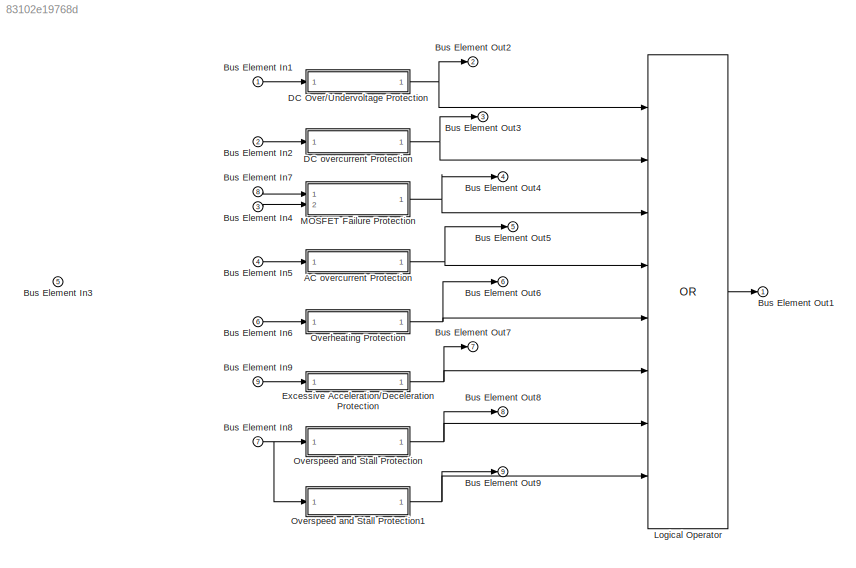
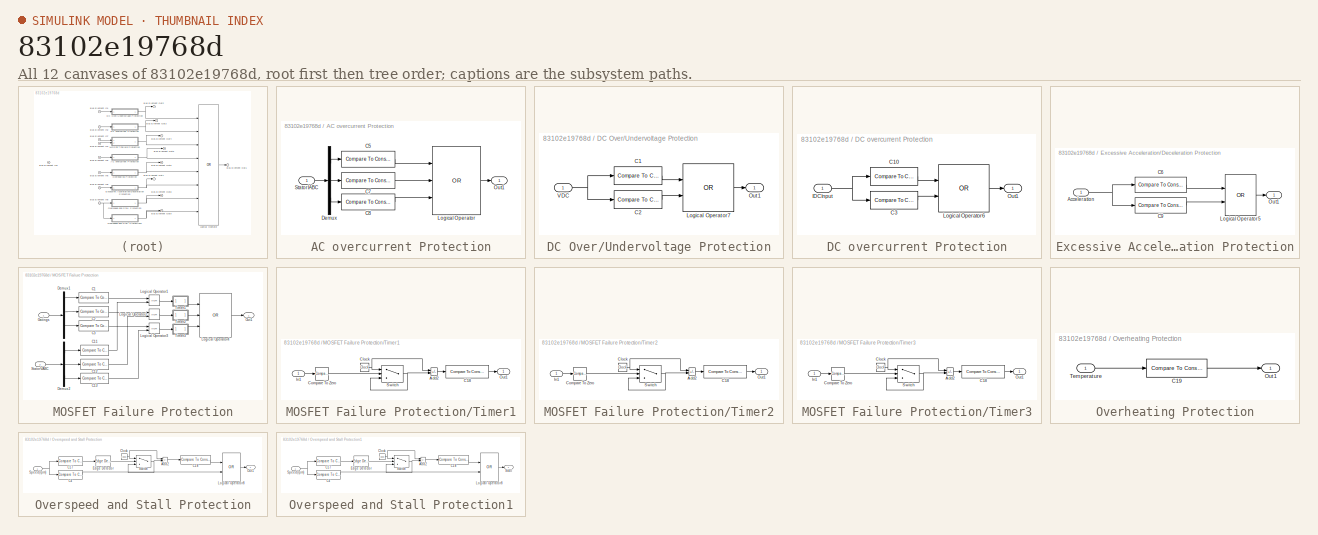
[diagram: thumbnail index - all 12 canvases of the model, root first then tree order]
MODEL slx_83102e19768d
KIND model
CONFIG AbsTol = auto
CONFIG EnableMultiTasking = off
CONFIG FixedStep = auto
CONFIG MaxStep = auto
CONFIG MinStep = auto
CONFIG RelTol = 1e-3
CONFIG SampleTimeConstraint = Unconstrained
CONFIG Solver = VariableStepAuto
CONFIG SolverName = VariableStepAuto
CONFIG StartTime = 0.0
CONFIG StopTime = 10.0
BLOCK [SubSystem] AC overcurrent Protection
  Ports = [1, 1]
  RequestExecContextInheritance = off
BLOCK [Reference] AC overcurrent Protection/C5  REF=simulink/Logic and Bit
Operations/Compare
To Constant
  NameLocation = top
  Ports = [1, 1]
  SourceBlock = simulink/Logic and Bit\nOperations/Compare\nTo Constant
  SourceProductBaseCode = SL
  SourceType = Compare To Constant
BLOCK [Reference] AC overcurrent Protection/C7  REF=simulink/Logic and Bit
Operations/Compare
To Constant
  Ports = [1, 1]
  SourceBlock = simulink/Logic and Bit\nOperations/Compare\nTo Constant
  SourceProductBaseCode = SL
  SourceType = Compare To Constant
BLOCK [Reference] AC overcurrent Protection/C8  REF=simulink/Logic and Bit
Operations/Compare
To Constant
  Ports = [1, 1]
  SourceBlock = simulink/Logic and Bit\nOperations/Compare\nTo Constant
  SourceProductBaseCode = SL
  SourceType = Compare To Constant
BLOCK [Demux] AC overcurrent Protection/Demux
  Outputs = 3
  Ports = [1, 3]
BLOCK [Logic] AC overcurrent Protection/Logical Operator
  AllPortsSameDT = off
  Inputs = 3
  Operator = OR
  OutDataTypeStr = boolean
  Ports = [3, 1]
BLOCK [Outport] AC overcurrent Protection/Out1
BLOCK [Inport] AC overcurrent Protection/StatorIABC
BLOCK [Inport] Bus Element In1
BLOCK [Inport] Bus Element In2
  Port = 2
BLOCK [Inport] Bus Element In3
  Port = 5
BLOCK [Inport] Bus Element In4
  Port = 3
BLOCK [Inport] Bus Element In5
  Port = 4
BLOCK [Inport] Bus Element In6
  Port = 6
BLOCK [Inport] Bus Element In7
  Port = 8
BLOCK [Inport] Bus Element In8
  Port = 7
BLOCK [Inport] Bus Element In9
  Port = 9
BLOCK [Outport] Bus Element Out1
BLOCK [Outport] Bus Element Out2
  Port = 2
BLOCK [Outport] Bus Element Out3
  Port = 3
BLOCK [Outport] Bus Element Out4
  Port = 4
BLOCK [Outport] Bus Element Out5
  Port = 5
BLOCK [Outport] Bus Element Out6
  Port = 6
BLOCK [Outport] Bus Element Out7
  Port = 7
BLOCK [Outport] Bus Element Out8
  Port = 8
BLOCK [Outport] Bus Element Out9
  Port = 9
BLOCK [SubSystem] DC Over//Undervoltage Protection
  Ports = [1, 1]
  RequestExecContextInheritance = off
BLOCK [Reference] DC Over//Undervoltage Protection/C1  REF=simulink/Logic and Bit
Operations/Compare
To Constant
  NameLocation = top
  Ports = [1, 1]
  SourceBlock = simulink/Logic and Bit\nOperations/Compare\nTo Constant
  SourceProductBaseCode = SL
  SourceType = Compare To Constant
BLOCK [Reference] DC Over//Undervoltage Protection/C2  REF=simulink/Logic and Bit
Operations/Compare
To Constant
  Ports = [1, 1]
  SourceBlock = simulink/Logic and Bit\nOperations/Compare\nTo Constant
  SourceProductBaseCode = SL
  SourceType = Compare To Constant
BLOCK [Logic] DC Over//Undervoltage Protection/Logical Operator7
  AllPortsSameDT = off
  Operator = OR
  OutDataTypeStr = boolean
  Ports = [2, 1]
BLOCK [Outport] DC Over//Undervoltage Protection/Out1
BLOCK [Inport] DC Over//Undervoltage Protection/VDC
BLOCK [SubSystem] DC overcurrent Protection
  Ports = [1, 1]
  RequestExecContextInheritance = off
BLOCK [Reference] DC overcurrent Protection/C10  REF=simulink/Logic and Bit
Operations/Compare
To Constant
  NameLocation = top
  Ports = [1, 1]
  SourceBlock = simulink/Logic and Bit\nOperations/Compare\nTo Constant
  SourceProductBaseCode = SL
  SourceType = Compare To Constant
BLOCK [Reference] DC overcurrent Protection/C3  REF=simulink/Logic and Bit
Operations/Compare
To Constant
  Ports = [1, 1]
  SourceBlock = simulink/Logic and Bit\nOperations/Compare\nTo Constant
  SourceProductBaseCode = SL
  SourceType = Compare To Constant
BLOCK [Inport] DC overcurrent Protection/IDCInput
BLOCK [Logic] DC overcurrent Protection/Logical Operator6
  AllPortsSameDT = off
  Operator = OR
  OutDataTypeStr = boolean
  Ports = [2, 1]
BLOCK [Outport] DC overcurrent Protection/Out1
BLOCK [SubSystem] Excessive Acceleration//Deceleration Protection
  Ports = [1, 1]
  RequestExecContextInheritance = off
BLOCK [Inport] Excessive Acceleration//Deceleration Protection/Acceleration
BLOCK [Reference] Excessive Acceleration//Deceleration Protection/C6  REF=simulink/Logic and Bit
Operations/Compare
To Constant
  NameLocation = top
  Ports = [1, 1]
  SourceBlock = simulink/Logic and Bit\nOperations/Compare\nTo Constant
  SourceProductBaseCode = SL
  SourceType = Compare To Constant
BLOCK [Reference] Excessive Acceleration//Deceleration Protection/C9  REF=simulink/Logic and Bit
Operations/Compare
To Constant
  Ports = [1, 1]
  SourceBlock = simulink/Logic and Bit\nOperations/Compare\nTo Constant
  SourceProductBaseCode = SL
  SourceType = Compare To Constant
BLOCK [Logic] Excessive Acceleration//Deceleration Protection/Logical Operator5
  AllPortsSameDT = off
  Operator = OR
  OutDataTypeStr = boolean
  Ports = [2, 1]
BLOCK [Outport] Excessive Acceleration//Deceleration Protection/Out1
BLOCK [Logic] Logical Operator
  AllPortsSameDT = off
  Inputs = 8
  Operator = OR
  OutDataTypeStr = boolean
  Ports = [8, 1]
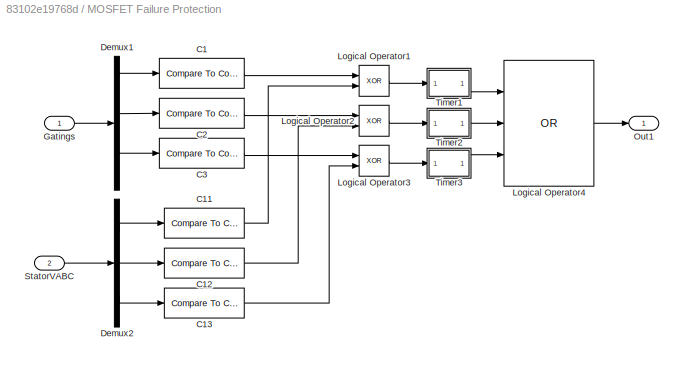
BLOCK [SubSystem] MOSFET Failure Protection
  Ports = [2, 1]
  RequestExecContextInheritance = off
BLOCK [Reference] MOSFET Failure Protection/C1  REF=simulink/Logic and Bit
Operations/Compare
To Constant
  Ports = [1, 1]
  SourceBlock = simulink/Logic and Bit\nOperations/Compare\nTo Constant
  SourceProductBaseCode = SL
  SourceType = Compare To Constant
BLOCK [Reference] MOSFET Failure Protection/C11  REF=simulink/Logic and Bit
Operations/Compare
To Constant
  Ports = [1, 1]
  SourceBlock = simulink/Logic and Bit\nOperations/Compare\nTo Constant
  SourceProductBaseCode = SL
  SourceType = Compare To Constant
BLOCK [Reference] MOSFET Failure Protection/C12  REF=simulink/Logic and Bit
Operations/Compare
To Constant
  Ports = [1, 1]
  SourceBlock = simulink/Logic and Bit\nOperations/Compare\nTo Constant
  SourceProductBaseCode = SL
  SourceType = Compare To Constant
BLOCK [Reference] MOSFET Failure Protection/C13  REF=simulink/Logic and Bit
Operations/Compare
To Constant
  Ports = [1, 1]
  SourceBlock = simulink/Logic and Bit\nOperations/Compare\nTo Constant
  SourceProductBaseCode = SL
  SourceType = Compare To Constant
BLOCK [Reference] MOSFET Failure Protection/C2  REF=simulink/Logic and Bit
Operations/Compare
To Constant
  Ports = [1, 1]
  SourceBlock = simulink/Logic and Bit\nOperations/Compare\nTo Constant
  SourceProductBaseCode = SL
  SourceType = Compare To Constant
BLOCK [Reference] MOSFET Failure Protection/C3  REF=simulink/Logic and Bit
Operations/Compare
To Constant
  Ports = [1, 1]
  SourceBlock = simulink/Logic and Bit\nOperations/Compare\nTo Constant
  SourceProductBaseCode = SL
  SourceType = Compare To Constant
BLOCK [Demux] MOSFET Failure Protection/Demux1
  Outputs = 6
  Ports = [1, 6]
BLOCK [Demux] MOSFET Failure Protection/Demux2
  Outputs = 3
  Ports = [1, 3]
BLOCK [Inport] MOSFET Failure Protection/Gatings
BLOCK [Logic] MOSFET Failure Protection/Logical Operator1
  AllPortsSameDT = off
  Operator = XOR
  OutDataTypeStr = boolean
  Ports = [2, 1]
BLOCK [Logic] MOSFET Failure Protection/Logical Operator2
  AllPortsSameDT = off
  Operator = XOR
  OutDataTypeStr = boolean
  Ports = [2, 1]
BLOCK [Logic] MOSFET Failure Protection/Logical Operator3
  AllPortsSameDT = off
  Operator = XOR
  OutDataTypeStr = boolean
  Ports = [2, 1]
BLOCK [Logic] MOSFET Failure Protection/Logical Operator4
  AllPortsSameDT = off
  Inputs = 3
  Operator = OR
  OutDataTypeStr = boolean
  Ports = [3, 1]
BLOCK [Outport] MOSFET Failure Protection/Out1
BLOCK [Inport] MOSFET Failure Protection/StatorVABC
  Port = 2
BLOCK [SubSystem] MOSFET Failure Protection/Timer1
  Ports = [1, 1]
  RequestExecContextInheritance = off
BLOCK [Sum] MOSFET Failure Protection/Timer1/Add2
  IconShape = rectangular
  Inputs = +-
  Ports = [2, 1]
BLOCK [Reference] MOSFET Failure Protection/Timer1/C18  REF=simulink/Logic and Bit
Operations/Compare
To Constant
  NameLocation = top
  Ports = [1, 1]
  SourceBlock = simulink/Logic and Bit\nOperations/Compare\nTo Constant
  SourceProductBaseCode = SL
  SourceType = Compare To Constant
BLOCK [Clock] MOSFET Failure Protection/Timer1/Clock
  Decimation = 1000000
  NameLocation = top
BLOCK [Reference] MOSFET Failure Protection/Timer1/Compare To Zero  REF=simulink/Logic and Bit
Operations/Compare
To Zero
  Ports = [1, 1]
  SourceBlock = simulink/Logic and Bit\nOperations/Compare\nTo Zero
  SourceProductBaseCode = SL
  SourceType = Compare To Zero
BLOCK [Inport] MOSFET Failure Protection/Timer1/In1
BLOCK [Outport] MOSFET Failure Protection/Timer1/Out1
BLOCK [Switch] MOSFET Failure Protection/Timer1/Switch
  InputSameDT = off
  SaturateOnIntegerOverflow = off
  Threshold = 1
BLOCK [SubSystem] MOSFET Failure Protection/Timer2
  Ports = [1, 1]
  RequestExecContextInheritance = off
BLOCK [Sum] MOSFET Failure Protection/Timer2/Add2
  IconShape = rectangular
  Inputs = +-
  Ports = [2, 1]
BLOCK [Reference] MOSFET Failure Protection/Timer2/C18  REF=simulink/Logic and Bit
Operations/Compare
To Constant
  NameLocation = top
  Ports = [1, 1]
  SourceBlock = simulink/Logic and Bit\nOperations/Compare\nTo Constant
  SourceProductBaseCode = SL
  SourceType = Compare To Constant
BLOCK [Clock] MOSFET Failure Protection/Timer2/Clock
  Decimation = 1000000
  NameLocation = top
BLOCK [Reference] MOSFET Failure Protection/Timer2/Compare To Zero  REF=simulink/Logic and Bit
Operations/Compare
To Zero
  Ports = [1, 1]
  SourceBlock = simulink/Logic and Bit\nOperations/Compare\nTo Zero
  SourceProductBaseCode = SL
  SourceType = Compare To Zero
BLOCK [Inport] MOSFET Failure Protection/Timer2/In1
BLOCK [Outport] MOSFET Failure Protection/Timer2/Out1
BLOCK [Switch] MOSFET Failure Protection/Timer2/Switch
  InputSameDT = off
  SaturateOnIntegerOverflow = off
  Threshold = 1
BLOCK [SubSystem] MOSFET Failure Protection/Timer3
  Ports = [1, 1]
  RequestExecContextInheritance = off
BLOCK [Sum] MOSFET Failure Protection/Timer3/Add2
  IconShape = rectangular
  Inputs = +-
  Ports = [2, 1]
BLOCK [Reference] MOSFET Failure Protection/Timer3/C18  REF=simulink/Logic and Bit
Operations/Compare
To Constant
  NameLocation = top
  Ports = [1, 1]
  SourceBlock = simulink/Logic and Bit\nOperations/Compare\nTo Constant
  SourceProductBaseCode = SL
  SourceType = Compare To Constant
BLOCK [Clock] MOSFET Failure Protection/Timer3/Clock
  Decimation = 1000000
  NameLocation = top
BLOCK [Reference] MOSFET Failure Protection/Timer3/Compare To Zero  REF=simulink/Logic and Bit
Operations/Compare
To Zero
  Ports = [1, 1]
  SourceBlock = simulink/Logic and Bit\nOperations/Compare\nTo Zero
  SourceProductBaseCode = SL
  SourceType = Compare To Zero
BLOCK [Inport] MOSFET Failure Protection/Timer3/In1
BLOCK [Outport] MOSFET Failure Protection/Timer3/Out1
BLOCK [Switch] MOSFET Failure Protection/Timer3/Switch
  InputSameDT = off
  SaturateOnIntegerOverflow = off
  Threshold = 1
BLOCK [SubSystem] Overheating Protection
  Ports = [1, 1]
  RequestExecContextInheritance = off
BLOCK [Reference] Overheating Protection/C19  REF=simulink/Logic and Bit
Operations/Compare
To Constant
  NameLocation = top
  Ports = [1, 1]
  SourceBlock = simulink/Logic and Bit\nOperations/Compare\nTo Constant
  SourceProductBaseCode = SL
  SourceType = Compare To Constant
BLOCK [Outport] Overheating Protection/Out1
BLOCK [Inport] Overheating Protection/Temperature
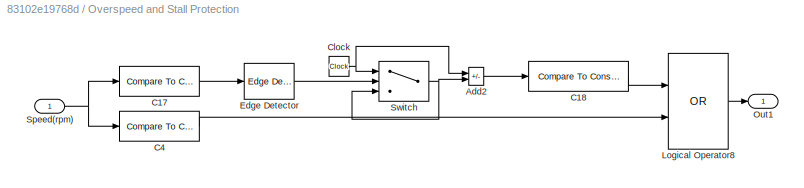
BLOCK [SubSystem] Overspeed and Stall Protection
  Ports = [1, 1]
  RequestExecContextInheritance = off
BLOCK [Sum] Overspeed and Stall Protection/Add2
  IconShape = rectangular
  Inputs = +-
  Ports = [2, 1]
BLOCK [Reference] Overspeed and Stall Protection/C17  REF=simulink/Logic and Bit
Operations/Compare
To Constant
  NameLocation = top
  Ports = [1, 1]
  SourceBlock = simulink/Logic and Bit\nOperations/Compare\nTo Constant
  SourceProductBaseCode = SL
  SourceType = Compare To Constant
BLOCK [Reference] Overspeed and Stall Protection/C18  REF=simulink/Logic and Bit
Operations/Compare
To Constant
  NameLocation = top
  Ports = [1, 1]
  SourceBlock = simulink/Logic and Bit\nOperations/Compare\nTo Constant
  SourceProductBaseCode = SL
  SourceType = Compare To Constant
BLOCK [Reference] Overspeed and Stall Protection/C4  REF=simulink/Logic and Bit
Operations/Compare
To Constant
  Ports = [1, 1]
  SourceBlock = simulink/Logic and Bit\nOperations/Compare\nTo Constant
  SourceProductBaseCode = SL
  SourceType = Compare To Constant
BLOCK [Clock] Overspeed and Stall Protection/Clock
  Decimation = 1000000
  NameLocation = top
BLOCK [Reference] Overspeed and Stall Protection/Edge Detector  REF=powerlib_meascontrol/Logic/Edge Detector
  Ports = [1, 1]
  SourceBlock = powerlib_meascontrol/Logic/Edge Detector
  SourceProductBaseCode = PS
  SourceType = Edge Detector
BLOCK [Logic] Overspeed and Stall Protection/Logical Operator8
  AllPortsSameDT = off
  Operator = OR
  OutDataTypeStr = boolean
  Ports = [2, 1]
BLOCK [Outport] Overspeed and Stall Protection/Out1
BLOCK [Inport] Overspeed and Stall Protection/Speed(rpm)
BLOCK [Switch] Overspeed and Stall Protection/Switch
  Criteria = u2 > Threshold
  InputSameDT = off
  SaturateOnIntegerOverflow = off
BLOCK [SubSystem] Overspeed and Stall Protection1
  Ports = [1, 1]
  RequestExecContextInheritance = off
BLOCK [Sum] Overspeed and Stall Protection1/Add2
  IconShape = rectangular
  Inputs = +-
  Ports = [2, 1]
BLOCK [Reference] Overspeed and Stall Protection1/C17  REF=simulink/Logic and Bit
Operations/Compare
To Constant
  NameLocation = top
  Ports = [1, 1]
  SourceBlock = simulink/Logic and Bit\nOperations/Compare\nTo Constant
  SourceProductBaseCode = SL
  SourceType = Compare To Constant
BLOCK [Reference] Overspeed and Stall Protection1/C18  REF=simulink/Logic and Bit
Operations/Compare
To Constant
  NameLocation = top
  Ports = [1, 1]
  SourceBlock = simulink/Logic and Bit\nOperations/Compare\nTo Constant
  SourceProductBaseCode = SL
  SourceType = Compare To Constant
BLOCK [Reference] Overspeed and Stall Protection1/C4  REF=simulink/Logic and Bit
Operations/Compare
To Constant
  Ports = [1, 1]
  SourceBlock = simulink/Logic and Bit\nOperations/Compare\nTo Constant
  SourceProductBaseCode = SL
  SourceType = Compare To Constant
BLOCK [Clock] Overspeed and Stall Protection1/Clock
  Decimation = 1000000
  NameLocation = top
BLOCK [Reference] Overspeed and Stall Protection1/Edge Detector  REF=powerlib_meascontrol/Logic/Edge Detector
  Ports = [1, 1]
  SourceBlock = powerlib_meascontrol/Logic/Edge Detector
  SourceProductBaseCode = PS
  SourceType = Edge Detector
BLOCK [Logic] Overspeed and Stall Protection1/Logical Operator8
  AllPortsSameDT = off
  Operator = OR
  OutDataTypeStr = boolean
  Ports = [2, 1]
BLOCK [Inport] Overspeed and Stall Protection1/Speed(rpm)
BLOCK [Outport] Overspeed and Stall Protection1/Stall
BLOCK [Switch] Overspeed and Stall Protection1/Switch
  Criteria = u2 > Threshold
  InputSameDT = off
  SaturateOnIntegerOverflow = off
LINE AC overcurrent Protection/C5:1 -> AC overcurrent Protection/Logical Operator:1
LINE AC overcurrent Protection/C7:1 -> AC overcurrent Protection/Logical Operator:2
LINE AC overcurrent Protection/C8:1 -> AC overcurrent Protection/Logical Operator:3
LINE AC overcurrent Protection/Demux:1 -> AC overcurrent Protection/C5:1
LINE AC overcurrent Protection/Demux:2 -> AC overcurrent Protection/C7:1
LINE AC overcurrent Protection/Demux:3 -> AC overcurrent Protection/C8:1
LINE AC overcurrent Protection/Logical Operator:1 -> AC overcurrent Protection/Out1:1
LINE AC overcurrent Protection/StatorIABC:1 -> AC overcurrent Protection/Demux:1
NET AC overcurrent Protection:1 -> Bus Element Out5:1, Logical Operator:4
LINE Bus Element In1:1 -> DC Over//Undervoltage Protection:1
LINE Bus Element In2:1 -> DC overcurrent Protection:1
LINE Bus Element In4:1 -> MOSFET Failure Protection:2
LINE Bus Element In5:1 -> AC overcurrent Protection:1
LINE Bus Element In6:1 -> Overheating Protection:1
LINE Bus Element In7:1 -> MOSFET Failure Protection:1
NET Bus Element In8:1 -> Overspeed and Stall Protection1:1, Overspeed and Stall Protection:1
LINE Bus Element In9:1 -> Excessive Acceleration//Deceleration Protection:1
LINE DC Over//Undervoltage Protection/C1:1 -> DC Over//Undervoltage Protection/Logical Operator7:1
LINE DC Over//Undervoltage Protection/C2:1 -> DC Over//Undervoltage Protection/Logical Operator7:2
LINE DC Over//Undervoltage Protection/Logical Operator7:1 -> DC Over//Undervoltage Protection/Out1:1
NET DC Over//Undervoltage Protection/VDC:1 -> DC Over//Undervoltage Protection/C1:1, DC Over//Undervoltage Protection/C2:1
NET DC Over//Undervoltage Protection:1 -> Bus Element Out2:1, Logical Operator:1
LINE DC overcurrent Protection/C10:1 -> DC overcurrent Protection/Logical Operator6:1
LINE DC overcurrent Protection/C3:1 -> DC overcurrent Protection/Logical Operator6:2
NET DC overcurrent Protection/IDCInput:1 -> DC overcurrent Protection/C10:1, DC overcurrent Protection/C3:1
LINE DC overcurrent Protection/Logical Operator6:1 -> DC overcurrent Protection/Out1:1
NET DC overcurrent Protection:1 -> Bus Element Out3:1, Logical Operator:2
NET Excessive Acceleration//Deceleration Protection/Acceleration:1 -> Excessive Acceleration//Deceleration Protection/C6:1, Excessive Acceleration//Deceleration Protection/C9:1
LINE Excessive Acceleration//Deceleration Protection/C6:1 -> Excessive Acceleration//Deceleration Protection/Logical Operator5:1
LINE Excessive Acceleration//Deceleration Protection/C9:1 -> Excessive Acceleration//Deceleration Protection/Logical Operator5:2
LINE Excessive Acceleration//Deceleration Protection/Logical Operator5:1 -> Excessive Acceleration//Deceleration Protection/Out1:1
NET Excessive Acceleration//Deceleration Protection:1 -> Bus Element Out7:1, Logical Operator:6
LINE Logical Operator:1 -> Bus Element Out1:1
LINE MOSFET Failure Protection/C11:1 -> MOSFET Failure Protection/Logical Operator1:2
LINE MOSFET Failure Protection/C12:1 -> MOSFET Failure Protection/Logical Operator2:2
LINE MOSFET Failure Protection/C13:1 -> MOSFET Failure Protection/Logical Operator3:2
LINE MOSFET Failure Protection/C1:1 -> MOSFET Failure Protection/Logical Operator1:1
LINE MOSFET Failure Protection/C2:1 -> MOSFET Failure Protection/Logical Operator2:1
LINE MOSFET Failure Protection/C3:1 -> MOSFET Failure Protection/Logical Operator3:1
LINE MOSFET Failure Protection/Demux1:1 -> MOSFET Failure Protection/C1:1
LINE MOSFET Failure Protection/Demux1:3 -> MOSFET Failure Protection/C2:1
LINE MOSFET Failure Protection/Demux1:5 -> MOSFET Failure Protection/C3:1
LINE MOSFET Failure Protection/Demux2:1 -> MOSFET Failure Protection/C11:1
LINE MOSFET Failure Protection/Demux2:2 -> MOSFET Failure Protection/C12:1
LINE MOSFET Failure Protection/Demux2:3 -> MOSFET Failure Protection/C13:1
LINE MOSFET Failure Protection/Gatings:1 -> MOSFET Failure Protection/Demux1:1
LINE MOSFET Failure Protection/Logical Operator1:1 -> MOSFET Failure Protection/Timer1:1
LINE MOSFET Failure Protection/Logical Operator2:1 -> MOSFET Failure Protection/Timer2:1
LINE MOSFET Failure Protection/Logical Operator3:1 -> MOSFET Failure Protection/Timer3:1
LINE MOSFET Failure Protection/Logical Operator4:1 -> MOSFET Failure Protection/Out1:1
LINE MOSFET Failure Protection/StatorVABC:1 -> MOSFET Failure Protection/Demux2:1
LINE MOSFET Failure Protection/Timer1/Add2:1 -> MOSFET Failure Protection/Timer1/C18:1
LINE MOSFET Failure Protection/Timer1/C18:1 -> MOSFET Failure Protection/Timer1/Out1:1
NET MOSFET Failure Protection/Timer1/Clock:1 -> MOSFET Failure Protection/Timer1/Add2:1, MOSFET Failure Protection/Timer1/Switch:1
LINE MOSFET Failure Protection/Timer1/Compare To Zero:1 -> MOSFET Failure Protection/Timer1/Switch:2
LINE MOSFET Failure Protection/Timer1/In1:1 -> MOSFET Failure Protection/Timer1/Compare To Zero:1
NET MOSFET Failure Protection/Timer1/Switch:1 -> MOSFET Failure Protection/Timer1/Add2:2, MOSFET Failure Protection/Timer1/Switch:3
LINE MOSFET Failure Protection/Timer1:1 -> MOSFET Failure Protection/Logical Operator4:1
LINE MOSFET Failure Protection/Timer2/Add2:1 -> MOSFET Failure Protection/Timer2/C18:1
LINE MOSFET Failure Protection/Timer2/C18:1 -> MOSFET Failure Protection/Timer2/Out1:1
NET MOSFET Failure Protection/Timer2/Clock:1 -> MOSFET Failure Protection/Timer2/Add2:1, MOSFET Failure Protection/Timer2/Switch:1
LINE MOSFET Failure Protection/Timer2/Compare To Zero:1 -> MOSFET Failure Protection/Timer2/Switch:2
LINE MOSFET Failure Protection/Timer2/In1:1 -> MOSFET Failure Protection/Timer2/Compare To Zero:1
NET MOSFET Failure Protection/Timer2/Switch:1 -> MOSFET Failure Protection/Timer2/Add2:2, MOSFET Failure Protection/Timer2/Switch:3
LINE MOSFET Failure Protection/Timer2:1 -> MOSFET Failure Protection/Logical Operator4:2
LINE MOSFET Failure Protection/Timer3/Add2:1 -> MOSFET Failure Protection/Timer3/C18:1
LINE MOSFET Failure Protection/Timer3/C18:1 -> MOSFET Failure Protection/Timer3/Out1:1
NET MOSFET Failure Protection/Timer3/Clock:1 -> MOSFET Failure Protection/Timer3/Add2:1, MOSFET Failure Protection/Timer3/Switch:1
LINE MOSFET Failure Protection/Timer3/Compare To Zero:1 -> MOSFET Failure Protection/Timer3/Switch:2
LINE MOSFET Failure Protection/Timer3/In1:1 -> MOSFET Failure Protection/Timer3/Compare To Zero:1
NET MOSFET Failure Protection/Timer3/Switch:1 -> MOSFET Failure Protection/Timer3/Add2:2, MOSFET Failure Protection/Timer3/Switch:3
LINE MOSFET Failure Protection/Timer3:1 -> MOSFET Failure Protection/Logical Operator4:3
NET MOSFET Failure Protection:1 -> Bus Element Out4:1, Logical Operator:3
LINE Overheating Protection/C19:1 -> Overheating Protection/Out1:1
LINE Overheating Protection/Temperature:1 -> Overheating Protection/C19:1
NET Overheating Protection:1 -> Bus Element Out6:1, Logical Operator:5
LINE Overspeed and Stall Protection/Add2:1 -> Overspeed and Stall Protection/C18:1
LINE Overspeed and Stall Protection/C17:1 -> Overspeed and Stall Protection/Edge Detector:1
LINE Overspeed and Stall Protection/C18:1 -> Overspeed and Stall Protection/Logical Operator8:1
LINE Overspeed and Stall Protection/C4:1 -> Overspeed and Stall Protection/Logical Operator8:2
NET Overspeed and Stall Protection/Clock:1 -> Overspeed and Stall Protection/Add2:1, Overspeed and Stall Protection/Switch:1
LINE Overspeed and Stall Protection/Edge Detector:1 -> Overspeed and Stall Protection/Switch:2
LINE Overspeed and Stall Protection/Logical Operator8:1 -> Overspeed and Stall Protection/Out1:1
NET Overspeed and Stall Protection/Speed(rpm):1 -> Overspeed and Stall Protection/C17:1, Overspeed and Stall Protection/C4:1
NET Overspeed and Stall Protection/Switch:1 -> Overspeed and Stall Protection/Add2:2, Overspeed and Stall Protection/Switch:3
LINE Overspeed and Stall Protection1/Add2:1 -> Overspeed and Stall Protection1/C18:1
LINE Overspeed and Stall Protection1/C17:1 -> Overspeed and Stall Protection1/Edge Detector:1
LINE Overspeed and Stall Protection1/C18:1 -> Overspeed and Stall Protection1/Logical Operator8:1
LINE Overspeed and Stall Protection1/C4:1 -> Overspeed and Stall Protection1/Logical Operator8:2
NET Overspeed and Stall Protection1/Clock:1 -> Overspeed and Stall Protection1/Add2:1, Overspeed and Stall Protection1/Switch:1
LINE Overspeed and Stall Protection1/Edge Detector:1 -> Overspeed and Stall Protection1/Switch:2
LINE Overspeed and Stall Protection1/Logical Operator8:1 -> Overspeed and Stall Protection1/Stall:1
NET Overspeed and Stall Protection1/Speed(rpm):1 -> Overspeed and Stall Protection1/C17:1, Overspeed and Stall Protection1/C4:1
NET Overspeed and Stall Protection1/Switch:1 -> Overspeed and Stall Protection1/Add2:2, Overspeed and Stall Protection1/Switch:3
NET Overspeed and Stall Protection1:1 -> Bus Element Out9:1, Logical Operator:8
NET Overspeed and Stall Protection:1 -> Bus Element Out8:1, Logical Operator:7
note: NET lines group one-source signal fan-out (src -> all destinations, sorted); 1:1 wires keep LINE
